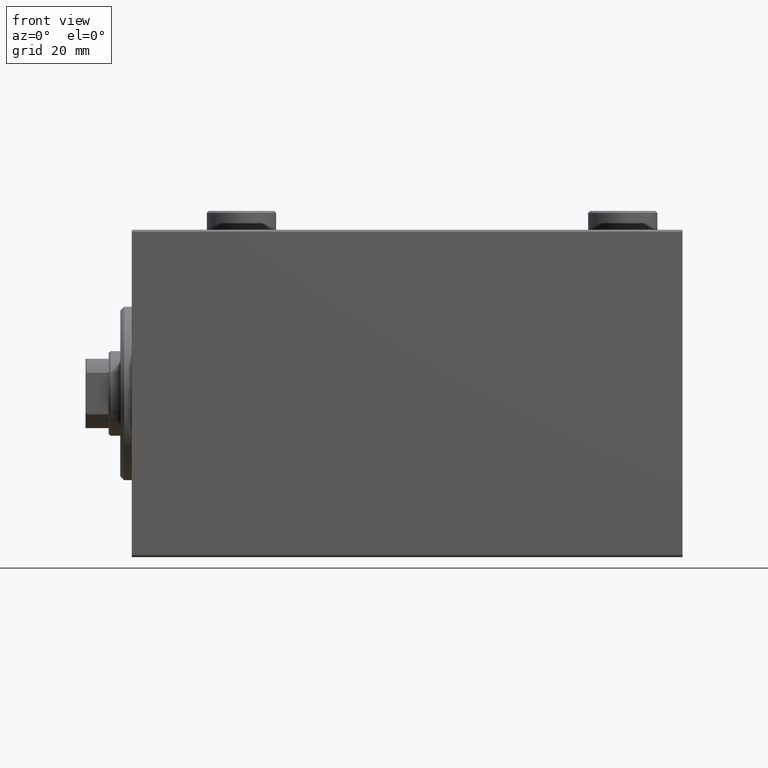
[diagram: clean part render]
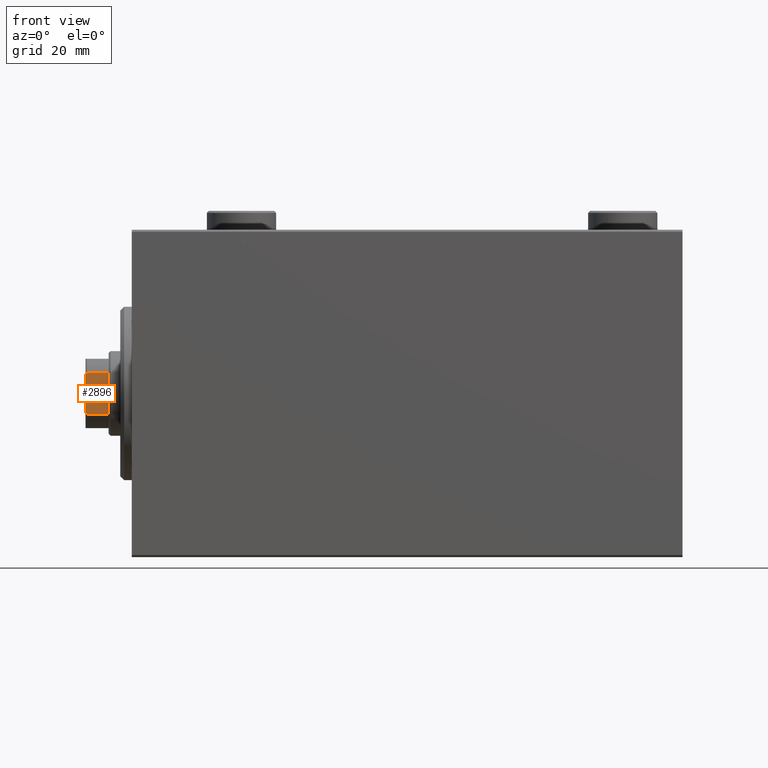
[diagram: same view with one face highlighted and labeled with its STEP entity id]
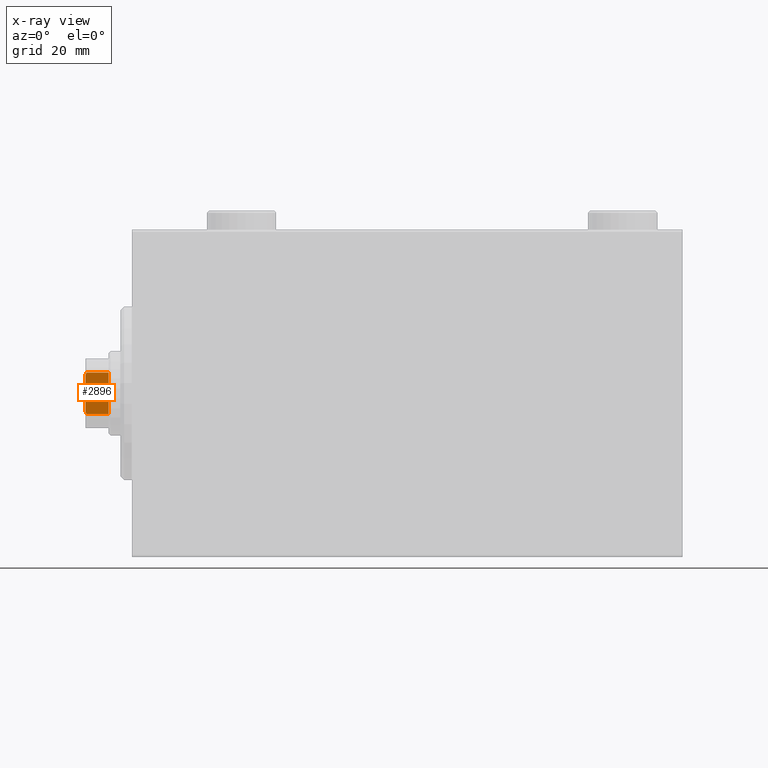
[diagram: x-ray of the same camera — body ghosted, the highlighted face saturated]
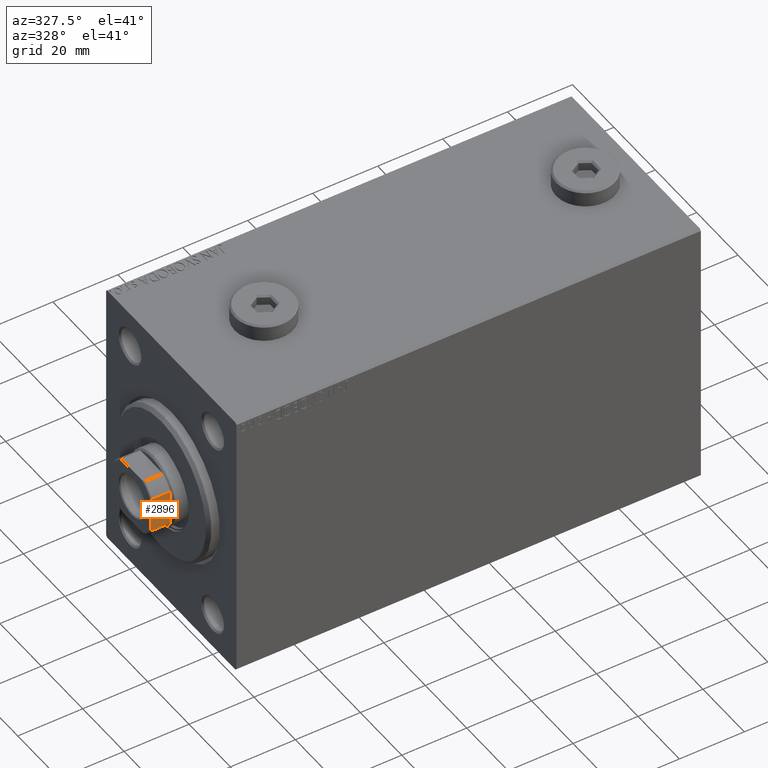
[diagram: same view with one face highlighted and labeled with its STEP entity id]
A machine part, front view. The second image highlights one B-rep face of the part: STEP entity #2896.
The next image is the same camera in x-ray: the body ghosted, the highlighted face saturated — about 0% of this face is hidden behind the body in this view.
A second angle (auxiliary view) of the same face is appended — the face is thin or edge-on in the first view.
In plain terms, the highlighted planar face has unit normal (0, 1, 0).
Its self-contained STEP definition (entity closure, byte-faithful):
#1891 = CARTESIAN_POINT ( 'NONE',  ( 5.408326913195988794, -8.999999999999998224, -0.001000000000001000089 ) ) ;
#2896 = ADVANCED_FACE ( 'NONE', ( #15974 ), #33502, .F. ) ;
#3294 = CARTESIAN_POINT ( 'NONE',  ( 5.004607318780318614, -9.000000000000001776, 142.9037142029269489 ) ) ;
#3656 = CARTESIAN_POINT ( 'NONE',  ( -5.207299490555475252, -9.000000000000001776, 142.8035449543006905 ) ) ;
#4039 = VERTEX_POINT ( 'NONE', #13399 ) ;
#5270 = DIRECTION ( 'NONE',  ( 1.000000000000000000, 0.000000000000000000, 0.000000000000000000 ) ) ;
#6145 = VECTOR ( 'NONE', #18727, 1000.000000000000000 ) ;
#8269 = LINE ( 'NONE', #29472, #27683 ) ;
#8767 = EDGE_LOOP ( 'NONE', ( #42072, #38261, #18930, #16099, #11507, #20413 ) ) ;
#8816 = DIRECTION ( 'NONE',  ( 0.000000000000000000, 1.000000000000000000, 0.000000000000000000 ) ) ;
#9508 = CARTESIAN_POINT ( 'NONE',  ( 4.800000000000017586, -9.000000000000001776, 143.0000000000000284 ) ) ;
#11044 = DIRECTION ( 'NONE',  ( 1.000000000000000000, 0.000000000000000000, 0.000000000000000000 ) ) ;
#11257 = CARTESIAN_POINT ( 'NONE',  ( -4.799999999999995381, -9.000000000000001776, 143.0000000000000284 ) ) ;
#11507 = ORIENTED_EDGE ( 'NONE', *, *, #14251, .F. ) ;
#13030 = VERTEX_POINT ( 'NONE', #38786 ) ;
#13117 = AXIS2_PLACEMENT_3D ( 'NONE', #37395, #8816, #30919 ) ;
#13399 = CARTESIAN_POINT ( 'NONE',  ( -5.408326913195988794, -8.999999999999998224, 136.9999999999999716 ) ) ;
#14251 = EDGE_CURVE ( 'NONE', #4039, #44355, #35097, .T. ) ;
#14809 = VECTOR ( 'NONE', #17807, 1000.000000000000000 ) ;
#15012 = B_SPLINE_CURVE_WITH_KNOTS ( 'NONE', 3,
 ( #11257, #42368, #3656, #32015 ),
 .UNSPECIFIED., .F., .F.,
 ( 4, 4 ),
 ( 0.000000000000000000, 0.0006782784334759318391 ),
 .UNSPECIFIED. ) ;
#15974 = FACE_OUTER_BOUND ( 'NONE', #8767, .T. ) ;
#16099 = ORIENTED_EDGE ( 'NONE', *, *, #26354, .T. ) ;
#16212 = CARTESIAN_POINT ( 'NONE',  ( -4.799999999999995381, -9.000000000000001776, 143.0000000000000284 ) ) ;
#17807 = DIRECTION ( 'NONE',  ( -0.000000000000000000, -0.000000000000000000, 1.000000000000000000 ) ) ;
#18727 = DIRECTION ( 'NONE',  ( -0.000000000000000000, -0.000000000000000000, 1.000000000000000000 ) ) ;
#18930 = ORIENTED_EDGE ( 'NONE', *, *, #27549, .F. ) ;
#19435 = VERTEX_POINT ( 'NONE', #37408 ) ;
#20276 = EDGE_CURVE ( 'NONE', #42337, #19435, #20817, .T. ) ;
#20413 = ORIENTED_EDGE ( 'NONE', *, *, #31050, .T. ) ;
#20817 = B_SPLINE_CURVE_WITH_KNOTS ( 'NONE', 3,
 ( #31177, #41760, #3294, #9508 ),
 .UNSPECIFIED., .F., .F.,
 ( 4, 4 ),
 ( 0.000000000000000000, 0.0006782784334759100467 ),
 .UNSPECIFIED. ) ;
#23194 = CARTESIAN_POINT ( 'NONE',  ( 5.408326913195988794, -8.999999999999998224, 142.7000000000000171 ) ) ;
#23905 = VERTEX_POINT ( 'NONE', #16212 ) ;
#24236 = EDGE_CURVE ( 'NONE', #13030, #42337, #36915, .T. ) ;
#24725 = CARTESIAN_POINT ( 'NONE',  ( -5.408326913195988794, -8.999999999999998224, -0.001000000000001000089 ) ) ;
#26354 = EDGE_CURVE ( 'NONE', #23905, #44355, #15012, .T. ) ;
#27549 = EDGE_CURVE ( 'NONE', #23905, #19435, #35965, .T. ) ;
#27683 = VECTOR ( 'NONE', #5270, 1000.000000000000000 ) ;
#29472 = CARTESIAN_POINT ( 'NONE',  ( -8.999999999999998224, -9.000000000000001776, 137.0000000000000000 ) ) ;
#30919 = DIRECTION ( 'NONE',  ( 0.000000000000000000, -0.000000000000000000, 1.000000000000000000 ) ) ;
#31050 = EDGE_CURVE ( 'NONE', #4039, #13030, #8269, .T. ) ;
#31177 = CARTESIAN_POINT ( 'NONE',  ( 5.408326913195988794, -8.999999999999998224, 142.7000000000000171 ) ) ;
#32015 = CARTESIAN_POINT ( 'NONE',  ( -5.408326913195988794, -8.999999999999998224, 142.7000000000000171 ) ) ;
#33475 = VECTOR ( 'NONE', #11044, 1000.000000000000000 ) ;
#33502 = PLANE ( 'NONE',  #13117 ) ;
#35097 = LINE ( 'NONE', #24725, #14809 ) ;
#35524 = CARTESIAN_POINT ( 'NONE',  ( -5.408326913195988794, -8.999999999999998224, 142.7000000000000171 ) ) ;
#35965 = LINE ( 'NONE', #42624, #33475 ) ;
#36915 = LINE ( 'NONE', #1891, #6145 ) ;
#37395 = CARTESIAN_POINT ( 'NONE',  ( -8.999999999999998224, -9.000000000000001776, 143.0000000000000284 ) ) ;
#37408 = CARTESIAN_POINT ( 'NONE',  ( 4.800000000000017586, -9.000000000000001776, 143.0000000000000284 ) ) ;
#38261 = ORIENTED_EDGE ( 'NONE', *, *, #20276, .T. ) ;
#38786 = CARTESIAN_POINT ( 'NONE',  ( 5.408326913195988794, -8.999999999999998224, 136.9999999999999716 ) ) ;
#41760 = CARTESIAN_POINT ( 'NONE',  ( 5.207299490555480581, -8.999999999999998224, 142.8035449543006905 ) ) ;
#42072 = ORIENTED_EDGE ( 'NONE', *, *, #24236, .T. ) ;
#42337 = VERTEX_POINT ( 'NONE', #23194 ) ;
#42368 = CARTESIAN_POINT ( 'NONE',  ( -5.004607318780298186, -9.000000000000001776, 142.9037142029269489 ) ) ;
#42624 = CARTESIAN_POINT ( 'NONE',  ( -8.999999999999998224, -9.000000000000001776, 143.0000000000000284 ) ) ;
#44355 = VERTEX_POINT ( 'NONE', #35524 ) ;